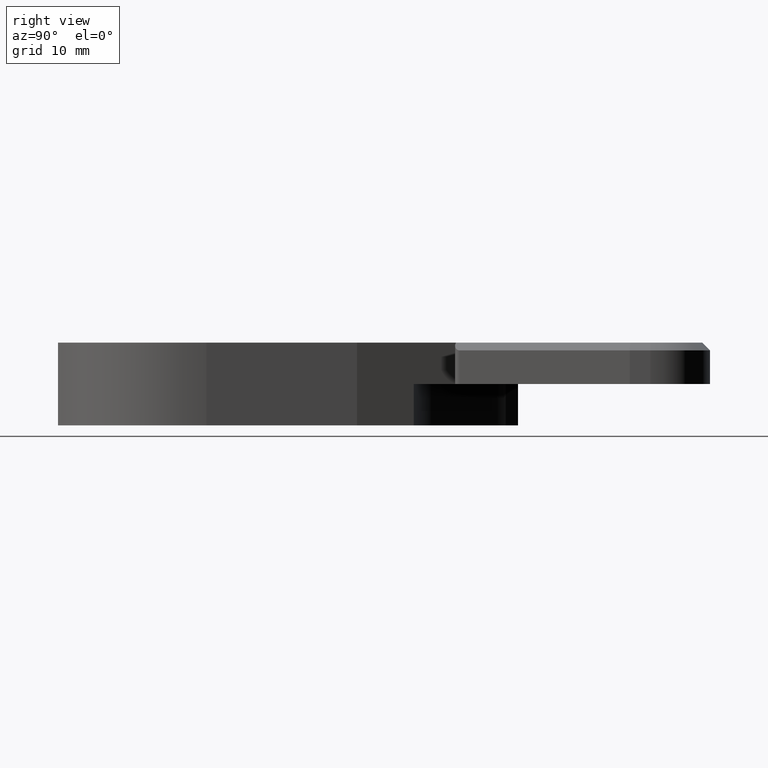
[diagram: clean part render]
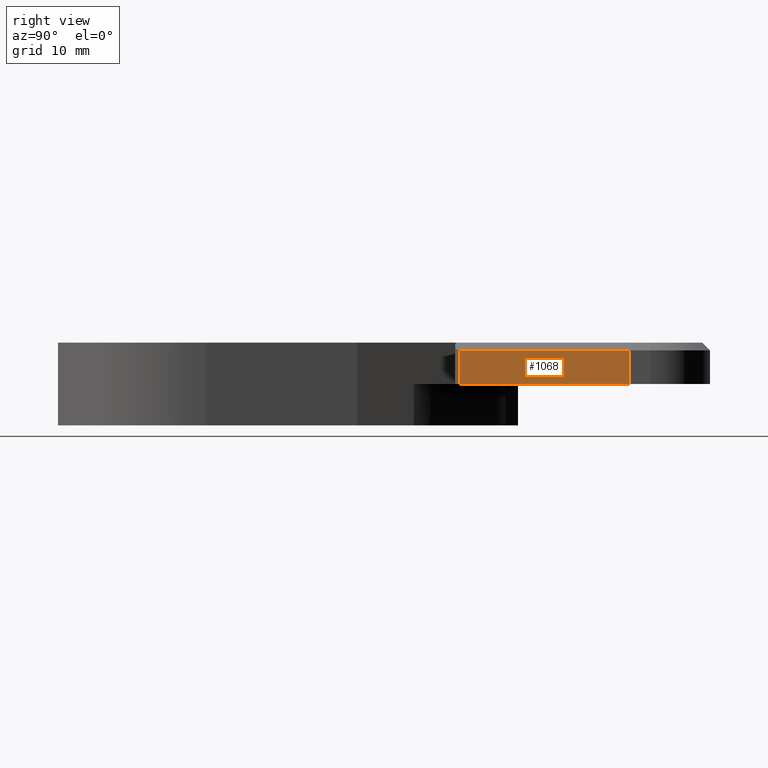
[diagram: same view with one face highlighted and labeled with its STEP entity id]
A machine part, right view. The second image highlights one B-rep face of the part: STEP entity #1068.
In plain terms, the highlighted planar face has unit normal (-0.9888, 0.1492, 0).
Its self-contained STEP definition (entity closure, byte-faithful):
#12 = VERTEX_POINT ( 'NONE', #111 ) ;
#27 = VECTOR ( 'NONE', #282, 1000.000000000000000 ) ;
#40 = CARTESIAN_POINT ( 'NONE',  ( 60.29025070389847230, -13.80084832302312670, 7.249999999999722000 ) ) ;
#111 = CARTESIAN_POINT ( 'NONE',  ( 62.77145180000040625, 2.646705399999983666, 7.249999999999722000 ) ) ;
#121 = LINE ( 'NONE', #40, #925 ) ;
#122 = VERTEX_POINT ( 'NONE', #1009 ) ;
#282 = DIRECTION ( 'NONE',  ( 0.0000000000000000000, 0.0000000000000000000, -1.000000000000000000 ) ) ;
#311 = LINE ( 'NONE', #963, #342 ) ;
#342 = VECTOR ( 'NONE', #746, 1000.000000000000000 ) ;
#368 = EDGE_CURVE ( 'NONE', #12, #122, #121, .T. ) ;
#391 = CARTESIAN_POINT ( 'NONE',  ( 60.29025070389847230, -13.80084832302312670, 3.999999999999701572 ) ) ;
#402 = FACE_OUTER_BOUND ( 'NONE', #894, .T. ) ;
#414 = ORIENTED_EDGE ( 'NONE', *, *, #1152, .F. ) ;
#425 = ORIENTED_EDGE ( 'NONE', *, *, #676, .T. ) ;
#475 = CARTESIAN_POINT ( 'NONE',  ( 62.77145180000040625, 2.646705399999983666, 7.999999999999401368 ) ) ;
#478 = DIRECTION ( 'NONE',  ( -0.9888119349360179333, 0.1491675478382895048, 0.0000000000000000000 ) ) ;
#604 = VERTEX_POINT ( 'NONE', #391 ) ;
#615 = LINE ( 'NONE', #1032, #27 ) ;
#618 = DIRECTION ( 'NONE',  ( 0.0000000000000000000, 0.0000000000000000000, -1.000000000000000000 ) ) ;
#676 = EDGE_CURVE ( 'NONE', #604, #757, #311, .T. ) ;
#740 = EDGE_CURVE ( 'NONE', #122, #604, #1345, .T. ) ;
#746 = DIRECTION ( 'NONE',  ( 0.1491675478382893938, 0.9888119349360179333, 0.0000000000000000000 ) ) ;
#757 = VERTEX_POINT ( 'NONE', #1150 ) ;
#770 = VECTOR ( 'NONE', #618, 1000.000000000000000 ) ;
#894 = EDGE_LOOP ( 'NONE', ( #414, #926, #1231, #425 ) ) ;
#925 = VECTOR ( 'NONE', #1033, 1000.000000000000000 ) ;
#926 = ORIENTED_EDGE ( 'NONE', *, *, #368, .T. ) ;
#963 = CARTESIAN_POINT ( 'NONE',  ( 62.77145180000040625, 2.646705399999983666, 3.999999999999701572 ) ) ;
#969 = AXIS2_PLACEMENT_3D ( 'NONE', #475, #478, #1234 ) ;
#1009 = CARTESIAN_POINT ( 'NONE',  ( 60.29025070389847230, -13.80084832302312670, 7.249999999999722000 ) ) ;
#1032 = CARTESIAN_POINT ( 'NONE',  ( 62.77145180000040625, 2.646705399999983666, 7.999999999999401368 ) ) ;
#1033 = DIRECTION ( 'NONE',  ( -0.1491675478382895048, -0.9888119349360179333, 0.0000000000000000000 ) ) ;
#1068 = ADVANCED_FACE ( 'NONE', ( #402 ), #1127, .F. ) ;
#1127 = PLANE ( 'NONE',  #969 ) ;
#1150 = CARTESIAN_POINT ( 'NONE',  ( 62.77145180000040625, 2.646705399999983666, 3.999999999999701572 ) ) ;
#1152 = EDGE_CURVE ( 'NONE', #12, #757, #615, .T. ) ;
#1231 = ORIENTED_EDGE ( 'NONE', *, *, #740, .T. ) ;
#1234 = DIRECTION ( 'NONE',  ( -0.1491675478382894771, -0.9888119349360178223, 0.0000000000000000000 ) ) ;
#1270 = CARTESIAN_POINT ( 'NONE',  ( 60.29025070389847230, -13.80084832302312670, 7.999999999999401368 ) ) ;
#1345 = LINE ( 'NONE', #1270, #770 ) ;